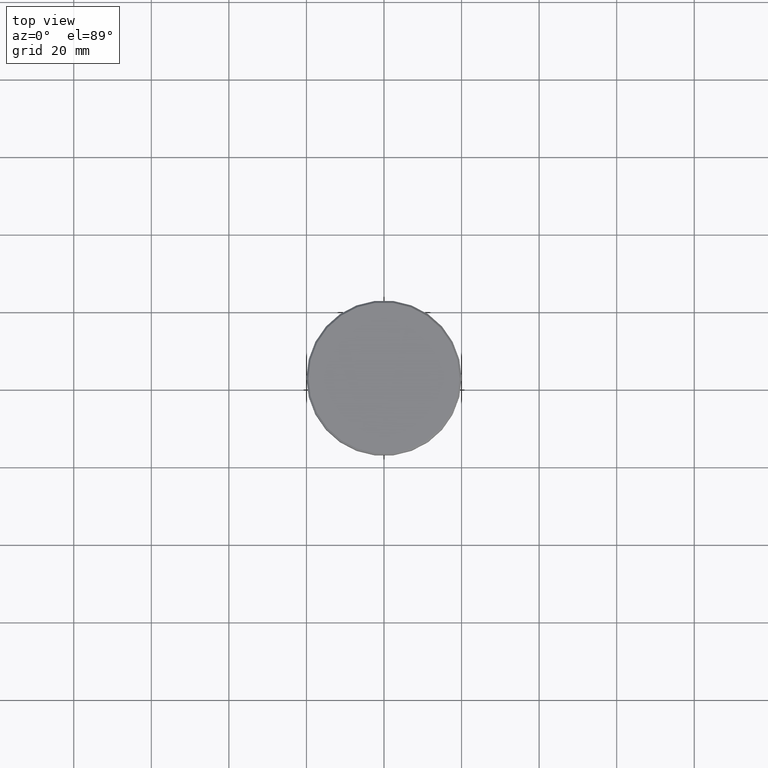
[diagram: clean part render]
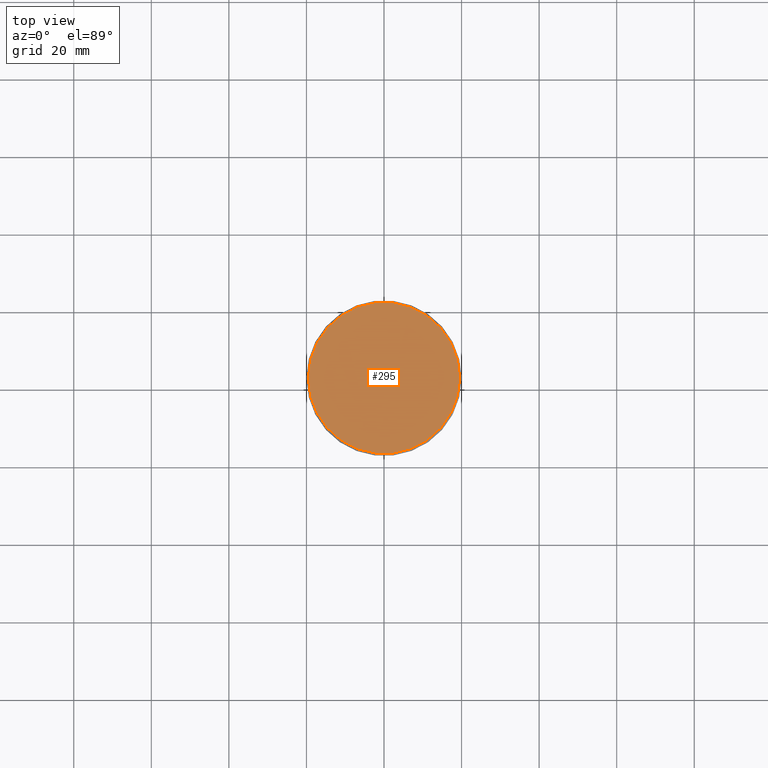
[diagram: same view with one face highlighted and labeled with its STEP entity id]
A machine part, top view. The second image highlights one B-rep face of the part: STEP entity #295.
In plain terms, the highlighted planar face has unit normal (0, -0, 1).
Its self-contained STEP definition (entity closure, byte-faithful):
#17 = AXIS2_PLACEMENT_3D ( 'NONE', #1079, #720, #690 ) ;
#80 = EDGE_CURVE ( 'NONE', #629, #735, #1081, .T. ) ;
#189 = CARTESIAN_POINT ( 'NONE',  ( 19.50000000000001776, 2.418677428316023515E-15, 0.000000000000000000 ) ) ;
#260 = AXIS2_PLACEMENT_3D ( 'NONE', #595, #782, #866 ) ;
#295 = ADVANCED_FACE ( 'NONE', ( #701 ), #634, .T. ) ;
#338 = DIRECTION ( 'NONE',  ( -0.000000000000000000, -0.000000000000000000, 1.000000000000000000 ) ) ;
#344 = EDGE_LOOP ( 'NONE', ( #1181, #702 ) ) ;
#349 = EDGE_CURVE ( 'NONE', #735, #629, #867, .T. ) ;
#594 = DIRECTION ( 'NONE',  ( 1.000000000000000000, 0.000000000000000000, 0.000000000000000000 ) ) ;
#595 = CARTESIAN_POINT ( 'NONE',  ( 0.000000000000000000, 0.000000000000000000, 0.000000000000000000 ) ) ;
#629 = VERTEX_POINT ( 'NONE', #189 ) ;
#634 = PLANE ( 'NONE',  #17 ) ;
#690 = DIRECTION ( 'NONE',  ( 1.000000000000000000, 0.000000000000000000, 0.000000000000000000 ) ) ;
#701 = FACE_OUTER_BOUND ( 'NONE', #344, .T. ) ;
#702 = ORIENTED_EDGE ( 'NONE', *, *, #80, .T. ) ;
#720 = DIRECTION ( 'NONE',  ( 0.000000000000000000, -0.000000000000000000, 1.000000000000000000 ) ) ;
#735 = VERTEX_POINT ( 'NONE', #760 ) ;
#760 = CARTESIAN_POINT ( 'NONE',  ( -19.50000000000001776, 0.000000000000000000, 0.000000000000000000 ) ) ;
#782 = DIRECTION ( 'NONE',  ( -0.000000000000000000, -0.000000000000000000, 1.000000000000000000 ) ) ;
#852 = AXIS2_PLACEMENT_3D ( 'NONE', #877, #338, #594 ) ;
#866 = DIRECTION ( 'NONE',  ( 1.000000000000000000, 0.000000000000000000, 0.000000000000000000 ) ) ;
#867 = CIRCLE ( 'NONE', #852, 19.50000000000001776 ) ;
#877 = CARTESIAN_POINT ( 'NONE',  ( 0.000000000000000000, 0.000000000000000000, 0.000000000000000000 ) ) ;
#1079 = CARTESIAN_POINT ( 'NONE',  ( 0.000000000000000000, 0.000000000000000000, 0.000000000000000000 ) ) ;
#1081 = CIRCLE ( 'NONE', #260, 19.50000000000001776 ) ;
#1181 = ORIENTED_EDGE ( 'NONE', *, *, #349, .T. ) ;